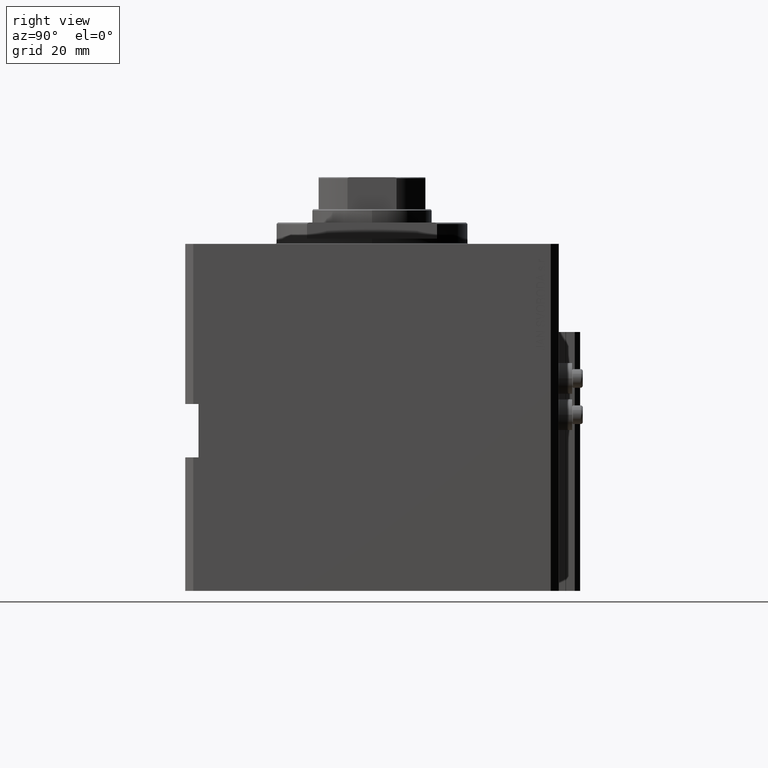
[diagram: clean part render]
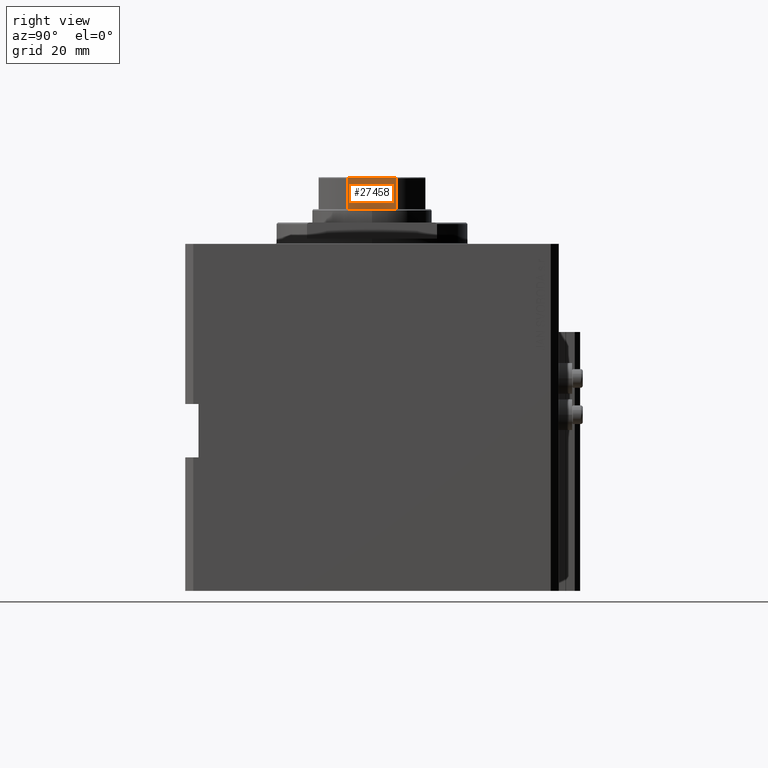
[diagram: same view with one face highlighted and labeled with its STEP entity id]
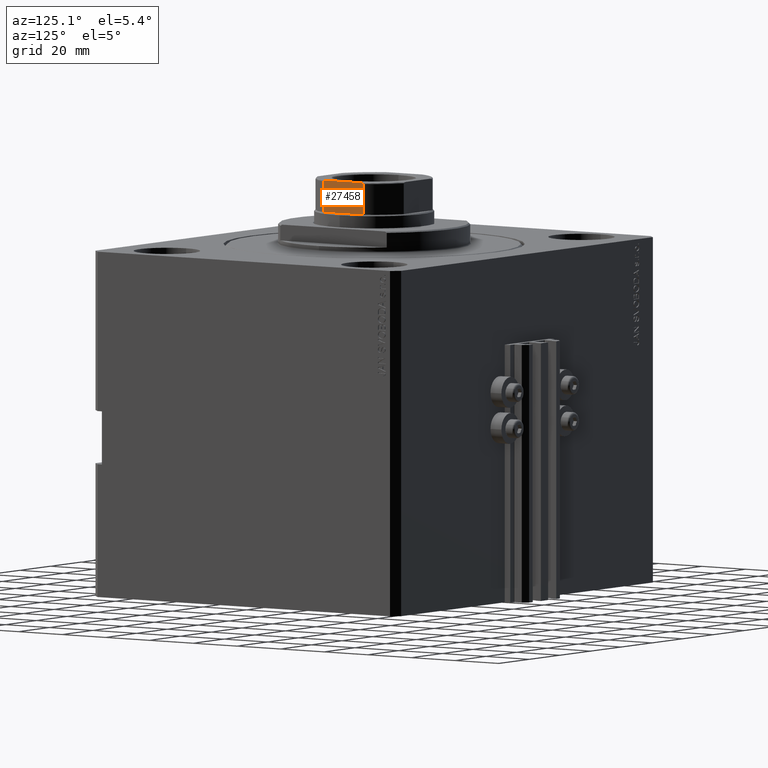
[diagram: same view with one face highlighted and labeled with its STEP entity id]
A machine part, right view. The second image highlights one B-rep face of the part: STEP entity #27458.
A second angle (auxiliary view) of the same face is appended — the face is thin or edge-on in the first view.
In plain terms, the highlighted planar face has unit normal (-1, -0, 0).
Its self-contained STEP definition (entity closure, byte-faithful):
#622 = CARTESIAN_POINT ( 'NONE',  ( 19.99999999999999645, 8.731041210088305249, 125.9862065548025498 ) ) ;
#1140 = CARTESIAN_POINT ( 'NONE',  ( 19.99999999999999289, -9.165151389911693869, 114.1000000000001364 ) ) ;
#1349 = CARTESIAN_POINT ( 'NONE',  ( 19.99999999999999645, 9.055524318101896952, 125.8141986763098004 ) ) ;
#4879 = DIRECTION ( 'NONE',  ( 1.734723475976806848E-16, -1.000000000000000000, 0.000000000000000000 ) ) ;
#4991 = EDGE_CURVE ( 'NONE', #7217, #47079, #47113, .T. ) ;
#5481 = CARTESIAN_POINT ( 'NONE',  ( 20.00000000000000000, -9.056020599733278331, 125.8137161059354412 ) ) ;
#5488 = ORIENTED_EDGE ( 'NONE', *, *, #23855, .F. ) ;
#6007 = LINE ( 'NONE', #36130, #20009 ) ;
#6278 = AXIS2_PLACEMENT_3D ( 'NONE', #23510, #16411, #4879 ) ;
#7217 = VERTEX_POINT ( 'NONE', #30451 ) ;
#8035 = VERTEX_POINT ( 'NONE', #24493 ) ;
#8464 = VECTOR ( 'NONE', #9040, 1000.000000000000000 ) ;
#8592 = EDGE_CURVE ( 'NONE', #47079, #12867, #47566, .T. ) ;
#8803 = PLANE ( 'NONE',  #6278 ) ;
#8945 = CARTESIAN_POINT ( 'NONE',  ( 20.00000000000000000, 8.847700323750256501, 125.9454059444999814 ) ) ;
#9040 = DIRECTION ( 'NONE',  ( -0.000000000000000000, -0.000000000000000000, 1.000000000000000000 ) ) ;
#9155 = ORIENTED_EDGE ( 'NONE', *, *, #36701, .F. ) ;
#10423 = CARTESIAN_POINT ( 'NONE',  ( 19.99999999999999645, 20.00000000000000000, 126.1000000000000227 ) ) ;
#10909 = LINE ( 'NONE', #10423, #17639 ) ;
#11293 = VERTEX_POINT ( 'NONE', #1140 ) ;
#12779 = CARTESIAN_POINT ( 'NONE',  ( 20.00000000000000000, 7.889866919029748793, 126.1000000000000227 ) ) ;
#12867 = VERTEX_POINT ( 'NONE', #12779 ) ;
#13303 = CARTESIAN_POINT ( 'NONE',  ( 20.00000000000000000, -7.889866919029739911, 126.1000000000000227 ) ) ;
#13328 = CARTESIAN_POINT ( 'NONE',  ( 20.00000000000000355, -9.165151389911670776, 125.6622865831653115 ) ) ;
#13597 = DIRECTION ( 'NONE',  ( -1.734723475976807094E-16, 1.000000000000000000, -0.000000000000000000 ) ) ;
#14400 = CARTESIAN_POINT ( 'NONE',  ( 20.00000000000000000, -8.376270842886095025, 126.0790317661354152 ) ) ;
#16411 = DIRECTION ( 'NONE',  ( -1.000000000000000000, -1.734723475976806848E-16, 0.000000000000000000 ) ) ;
#16884 = CARTESIAN_POINT ( 'NONE',  ( 19.99999999999999289, -9.165151389911693869, -0.001000000000001000089 ) ) ;
#17639 = VECTOR ( 'NONE', #22166, 1000.000000000000000 ) ;
#18365 = EDGE_LOOP ( 'NONE', ( #9155, #20587, #5488, #22326, #35447, #21932 ) ) ;
#19503 = CARTESIAN_POINT ( 'NONE',  ( 19.99999999999999645, 9.165151389911683211, 125.6000000000000227 ) ) ;
#19939 = CARTESIAN_POINT ( 'NONE',  ( 20.00000000000000000, -8.849170428565228619, 125.9446655850051968 ) ) ;
#20009 = VECTOR ( 'NONE', #13597, 1000.000000000000000 ) ;
#20186 = CARTESIAN_POINT ( 'NONE',  ( 20.00000000000000355, -9.005944049512766725, 125.8509746237501048 ) ) ;
#20587 = ORIENTED_EDGE ( 'NONE', *, *, #45508, .T. ) ;
#21932 = ORIENTED_EDGE ( 'NONE', *, *, #8592, .T. ) ;
#22166 = DIRECTION ( 'NONE',  ( -1.734723475976807094E-16, 1.000000000000000000, -0.000000000000000000 ) ) ;
#22326 = ORIENTED_EDGE ( 'NONE', *, *, #34976, .T. ) ;
#23510 = CARTESIAN_POINT ( 'NONE',  ( 19.99999999999999645, 20.00000000000000000, 126.1000000000000227 ) ) ;
#23855 = EDGE_CURVE ( 'NONE', #11293, #8035, #28389, .T. ) ;
#23888 = CARTESIAN_POINT ( 'NONE',  ( 20.00000000000001066, 8.377106304411501725, 126.0787779673725737 ) ) ;
#24493 = CARTESIAN_POINT ( 'NONE',  ( 19.99999999999999289, -9.165151389911693869, 125.6000000000000227 ) ) ;
#24587 = CARTESIAN_POINT ( 'NONE',  ( 20.00000000000000711, -8.731854386667054158, 125.9859761974170027 ) ) ;
#25774 = B_SPLINE_CURVE_WITH_KNOTS ( 'NONE', 3,
 ( #33021, #47948, #14400, #24587, #19939, #20186, #5481, #46140, #13328, #35855 ),
 .UNSPECIFIED., .F., .F.,
 ( 4, 2, 2, 2, 4 ),
 ( 1.734723475976807094E-18, 0.0007281986681936650002, 0.001092298002290506987, 0.001274347669338925758, 0.001456397336387344529 ),
 .UNSPECIFIED. ) ;
#25865 = CARTESIAN_POINT ( 'NONE',  ( 19.99999999999999645, 9.165151389911683211, 125.6000000000000227 ) ) ;
#27458 = ADVANCED_FACE ( 'NONE', ( #30622 ), #8803, .F. ) ;
#28389 = LINE ( 'NONE', #16884, #8464 ) ;
#28512 = DIRECTION ( 'NONE',  ( -0.000000000000000000, -0.000000000000000000, 1.000000000000000000 ) ) ;
#30451 = CARTESIAN_POINT ( 'NONE',  ( 19.99999999999999645, 9.165151389911683211, 114.1000000000001364 ) ) ;
#30513 = VERTEX_POINT ( 'NONE', #13303 ) ;
#30622 = FACE_OUTER_BOUND ( 'NONE', #18365, .T. ) ;
#31870 = VECTOR ( 'NONE', #28512, 1000.000000000000000 ) ;
#33021 = CARTESIAN_POINT ( 'NONE',  ( 20.00000000000000000, -7.889866919029739911, 126.1000000000000227 ) ) ;
#34442 = CARTESIAN_POINT ( 'NONE',  ( 20.00000000000000000, 7.889866919029748793, 126.1000000000000227 ) ) ;
#34917 = CARTESIAN_POINT ( 'NONE',  ( 19.99999999999999289, 9.135943898188777723, 125.7204496596642542 ) ) ;
#34976 = EDGE_CURVE ( 'NONE', #11293, #7217, #6007, .T. ) ;
#35447 = ORIENTED_EDGE ( 'NONE', *, *, #4991, .T. ) ;
#35855 = CARTESIAN_POINT ( 'NONE',  ( 19.99999999999999289, -9.165151389911693869, 125.6000000000000227 ) ) ;
#36130 = CARTESIAN_POINT ( 'NONE',  ( 19.99999999999999645, 20.00000000000000000, 114.1000000000000085 ) ) ;
#36701 = EDGE_CURVE ( 'NONE', #30513, #12867, #10909, .T. ) ;
#42010 = CARTESIAN_POINT ( 'NONE',  ( 20.00000000000001066, 8.134263528852963887, 126.1000000000001080 ) ) ;
#43194 = CARTESIAN_POINT ( 'NONE',  ( 19.99999999999999645, 9.165151389911683211, -0.001000000000001000089 ) ) ;
#45197 = CARTESIAN_POINT ( 'NONE',  ( 19.99999999999999645, 9.165151389911683211, 125.6624095850606437 ) ) ;
#45508 = EDGE_CURVE ( 'NONE', #30513, #8035, #25774, .T. ) ;
#46140 = CARTESIAN_POINT ( 'NONE',  ( 20.00000000000000000, -9.135966866521641805, 125.7203262903151000 ) ) ;
#46171 = CARTESIAN_POINT ( 'NONE',  ( 20.00000000000000000, 9.005650948982596660, 125.8512182151568766 ) ) ;
#47079 = VERTEX_POINT ( 'NONE', #25865 ) ;
#47113 = LINE ( 'NONE', #43194, #31870 ) ;
#47566 = B_SPLINE_CURVE_WITH_KNOTS ( 'NONE', 3,
 ( #19503, #45197, #34917, #1349, #46171, #8945, #622, #23888, #42010, #34442 ),
 .UNSPECIFIED., .F., .F.,
 ( 4, 2, 2, 2, 4 ),
 ( 0.000000000000000000, 0.0001842078696387952543, 0.0003684157392775905086, 0.0007368314785551765720, 0.001473662957110353578 ),
 .UNSPECIFIED. ) ;
#47948 = CARTESIAN_POINT ( 'NONE',  ( 19.99999999999999645, -8.134318822980981523, 126.1000000000000227 ) ) ;